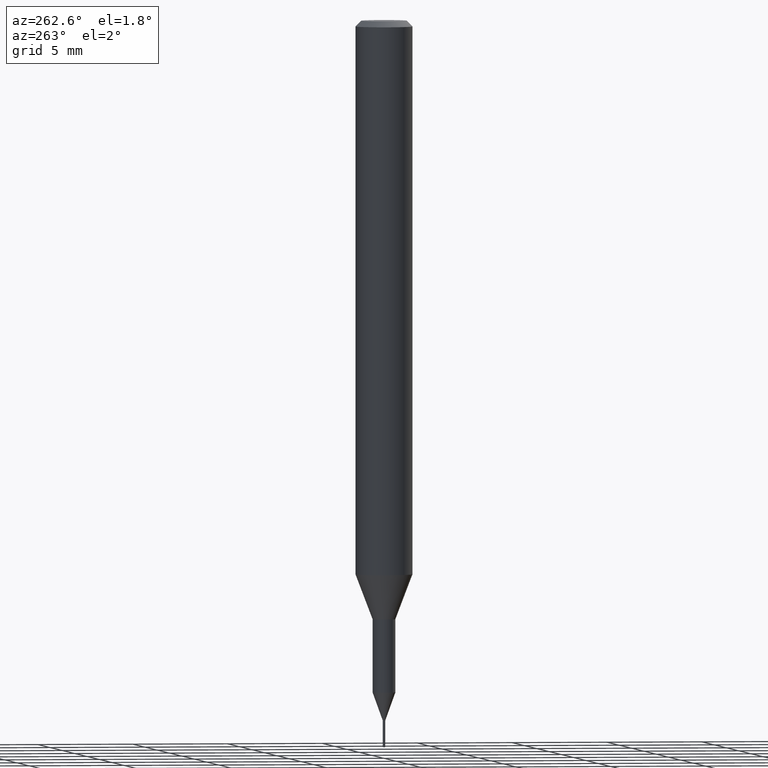
[diagram: clean part render]
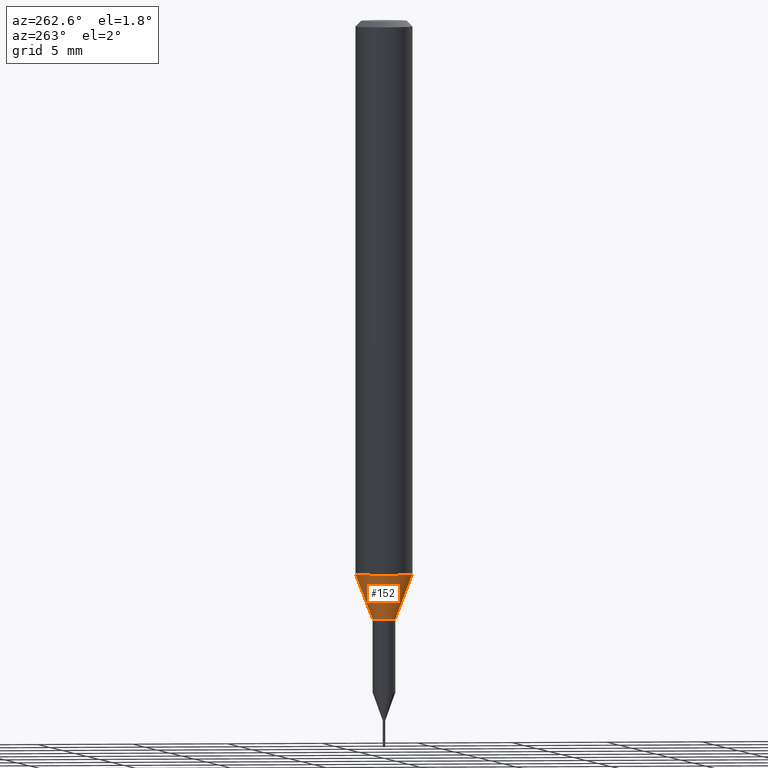
[diagram: same view with one face highlighted and labeled with its STEP entity id]
A machine part, auxiliary view. The second image highlights one B-rep face of the part: STEP entity #152.
In plain terms, the highlighted conical surface has half-angle 20.997 deg.
Its self-contained STEP definition (entity closure, byte-faithful):
#120=EDGE_CURVE('',#178,#236,#298,.T.);
#126=EDGE_CURVE('',#246,#220,#304,.T.);
#132=EDGE_CURVE('',#220,#236,#310,.T.);
#152=ADVANCED_FACE('',(#332),#333,.T.);
#176=EDGE_CURVE('',#178,#246,#361,.T.);
#178=VERTEX_POINT('',#363);
#220=VERTEX_POINT('',#410);
#236=VERTEX_POINT('',#428);
#246=VERTEX_POINT('',#438);
#298=CIRCLE('',#491,0.6);
#304=CIRCLE('',#502,1.5);
#310=LINE('',#510,#511);
#332=FACE_OUTER_BOUND('',#544,.T.);
#333=CONICAL_SURFACE('',#545,1.05,0.366459241971866);
#361=LINE('',#578,#579);
#363=CARTESIAN_POINT('',(7.34763812293426E-017,-0.6,-31.3));
#410=CARTESIAN_POINT('',(0.0,1.5,-28.955));
#428=CARTESIAN_POINT('',(0.0,0.6,-31.3));
#438=CARTESIAN_POINT('',(1.83690953073357E-016,-1.5,-28.955));
#491=AXIS2_PLACEMENT_3D('',#722,#723,#724);
#502=AXIS2_PLACEMENT_3D('',#727,#728,#729);
#510=CARTESIAN_POINT('',(-1.2858366715135E-016,1.05,-30.1275));
#511=VECTOR('',#732,1.0);
#544=EDGE_LOOP('',(#761,#762,#763,#764));
#545=AXIS2_PLACEMENT_3D('',#765,#766,#767);
#578=CARTESIAN_POINT('',(1.2858366715135E-016,-1.05,-30.1275));
#579=VECTOR('',#804,1.0);
#722=CARTESIAN_POINT('',(0.0,0.0,-31.3));
#723=DIRECTION('',(0.0,0.0,-1.0));
#724=DIRECTION('',(0.0,1.0,0.0));
#727=CARTESIAN_POINT('',(0.0,0.0,-28.955));
#728=DIRECTION('',(0.0,0.0,-1.0));
#729=DIRECTION('',(0.0,1.0,0.0));
#732=DIRECTION('',(4.38791184365088E-017,-0.358312026550805,-0.93360189140182));
#761=ORIENTED_EDGE('',*,*,#132,.T.);
#762=ORIENTED_EDGE('',*,*,#120,.F.);
#763=ORIENTED_EDGE('',*,*,#176,.T.);
#764=ORIENTED_EDGE('',*,*,#126,.T.);
#765=CARTESIAN_POINT('',(0.0,0.0,-30.1275));
#766=DIRECTION('',(-0.0,-0.0,1.0));
#767=DIRECTION('',(0.0,1.0,0.0));
#804=DIRECTION('',(4.38791184365088E-017,-0.358312026550805,0.93360189140182));